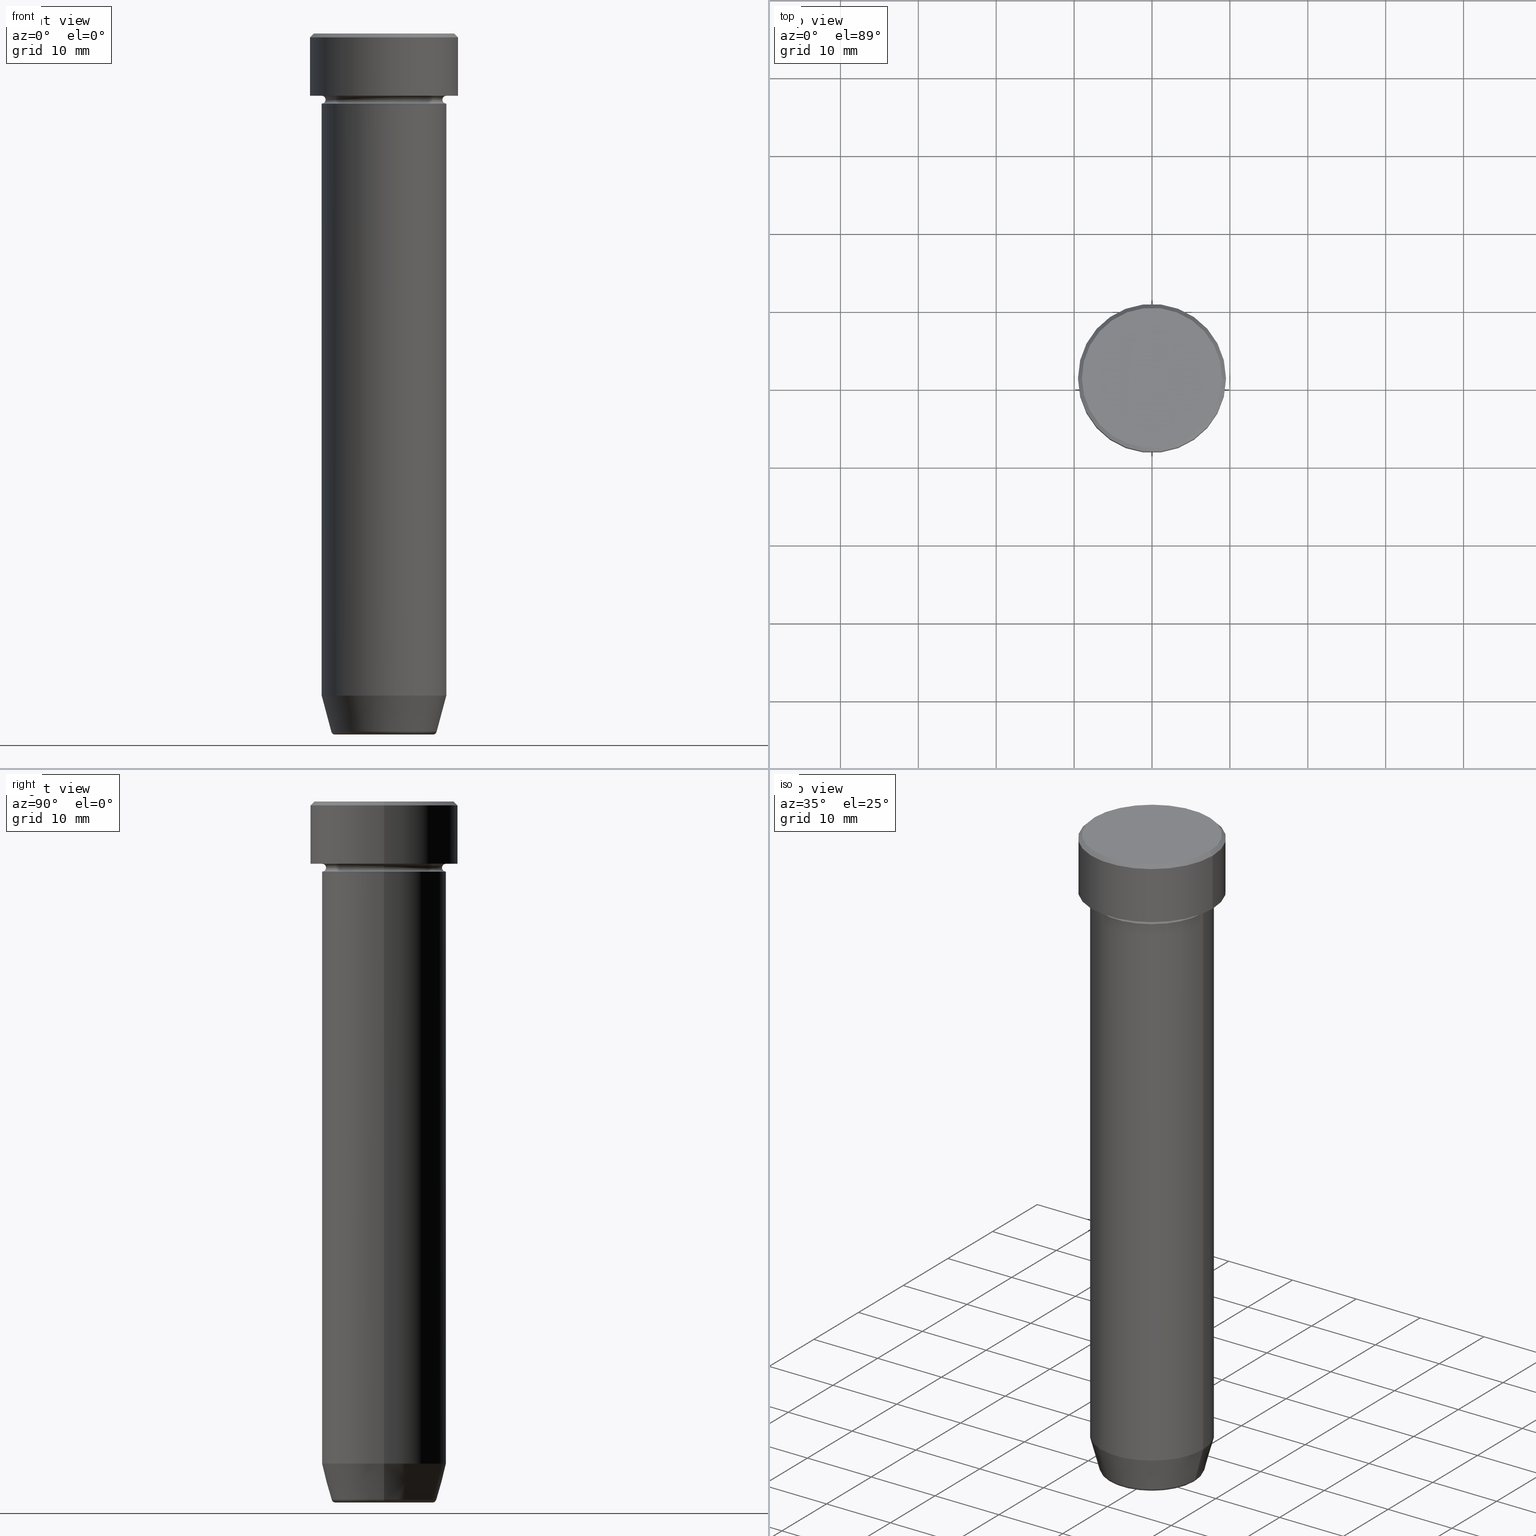
[diagram: canonical four-view strip — front | top / right | iso, engineering-drawing reading convention]
A machine part, canonical four-view strip (front | top / right | iso — engineering-drawing reading convention). The complete STEP part file that produces these views, byte-faithful:
ISO-10303-21;
HEADER;
FILE_DESCRIPTION (( 'STEP AP203' ),
    '1' );
FILE_NAME ('87c8.STEP',
    '2024-01-02T22:12:27',
    ( '' ),
    ( '' ),
    'SwSTEP 2.0',
    'SolidWorks 2019',
    '' );
FILE_SCHEMA (( 'CONFIG_CONTROL_DESIGN' ));
ENDSEC;

DATA;
#1 = VERTEX_POINT ( 'NONE', #568 ) ;
#2 = DIRECTION ( 'NONE',  ( 1.000000000000000000, 0.000000000000000000, 0.000000000000000000 ) ) ;
#3 = DIRECTION ( 'NONE',  ( 1.000000000000000000, 0.000000000000000000, 0.000000000000000000 ) ) ;
#4 = CIRCLE ( 'NONE', #336, 0.5000000000000004441 ) ;
#5 = ORIENTED_EDGE ( 'NONE', *, *, #583, .T. ) ;
#6 = SECURITY_CLASSIFICATION ( '', '', #526 ) ;
#7 = EDGE_CURVE ( 'NONE', #109, #513, #320, .T. ) ;
#8 = CARTESIAN_POINT ( 'NONE',  ( 0.000000000000000000, 0.000000000000000000, -8.500000000000000000 ) ) ;
#9 = VERTEX_POINT ( 'NONE', #426 ) ;
#10 = DIRECTION ( 'NONE',  ( -0.000000000000000000, -0.000000000000000000, 1.000000000000000000 ) ) ;
#11 = ORIENTED_EDGE ( 'NONE', *, *, #7, .F. ) ;
#12 = ORIENTED_EDGE ( 'NONE', *, *, #390, .F. ) ;
#13 = ADVANCED_FACE ( 'NONE', ( #67 ), #85, .F. ) ;
#14 = DIRECTION ( 'NONE',  ( 1.000000000000000000, 0.000000000000000000, 0.000000000000000000 ) ) ;
#15 = DIRECTION ( 'NONE',  ( -1.000000000000000000, 0.000000000000000000, 0.000000000000000000 ) ) ;
#16 = VERTEX_POINT ( 'NONE', #153 ) ;
#17 = DATE_TIME_ROLE ( 'classification_date' ) ;
#18 = ORIENTED_EDGE ( 'NONE', *, *, #38, .T. ) ;
#19 = VECTOR ( 'NONE', #10, 1000.000000000000000 ) ;
#20 = UNCERTAINTY_MEASURE_WITH_UNIT (LENGTH_MEASURE( 1.000000000000000082E-05 ), #577, 'distance_accuracy_value', 'NONE');
#21 = CARTESIAN_POINT ( 'NONE',  ( 0.000000000000000000, 0.000000000000000000, -89.62940952255125637 ) ) ;
#22 = ORIENTED_EDGE ( 'NONE', *, *, #494, .F. ) ;
#23 = EDGE_CURVE ( 'NONE', #469, #1, #63, .T. ) ;
#24 = CARTESIAN_POINT ( 'NONE',  ( 0.000000000000000000, 0.000000000000000000, 0.000000000000000000 ) ) ;
#25 = DIRECTION ( 'NONE',  ( -0.000000000000000000, -0.000000000000000000, 1.000000000000000000 ) ) ;
#26 = PERSON_AND_ORGANIZATION ( #177, #503 ) ;
#27 = VERTEX_POINT ( 'NONE', #196 ) ;
#28 = AXIS2_PLACEMENT_3D ( 'NONE', #253, #437, #59 ) ;
#29 = DIRECTION ( 'NONE',  ( -0.000000000000000000, -0.000000000000000000, 1.000000000000000000 ) ) ;
#30 = CALENDAR_DATE ( 2024, 2, 1 ) ;
#31 = CIRCLE ( 'NONE', #360, 8.000000000000000000 ) ;
#32 = DIRECTION ( 'NONE',  ( 1.000000000000000000, 0.000000000000000000, 0.000000000000000000 ) ) ;
#33 = DIRECTION ( 'NONE',  ( 1.000000000000000000, 0.000000000000000000, 0.000000000000000000 ) ) ;
#34 = TOROIDAL_SURFACE ( 'NONE', #51, 8.000000000000000000, 0.5000000000000000000 ) ;
#35 = FACE_OUTER_BOUND ( 'NONE', #424, .T. ) ;
#36 = AXIS2_PLACEMENT_3D ( 'NONE', #475, #66, #417 ) ;
#37 = PERSON_AND_ORGANIZATION_ROLE ( 'creator' ) ;
#38 = EDGE_CURVE ( 'NONE', #105, #395, #224, .T. ) ;
#39 = CARTESIAN_POINT ( 'NONE',  ( 9.500000000000000000, 0.000000000000000000, 0.000000000000000000 ) ) ;
#40 = CARTESIAN_POINT ( 'NONE',  ( 0.000000000000000000, 0.000000000000000000, -90.00000000000000000 ) ) ;
#41 = APPROVAL_STATUS ( 'not_yet_approved' ) ;
#42 = CARTESIAN_POINT ( 'NONE',  ( 0.000000000000000000, 0.000000000000000000, -89.50000000000000000 ) ) ;
#43 = CC_DESIGN_DATE_AND_TIME_ASSIGNMENT ( #251, #154, ( #330 ) ) ;
#44 = ADVANCED_FACE ( 'NONE', ( #98 ), #34, .F. ) ;
#45 = LOCAL_TIME ( 23, 12, 27.00000000000000000, #442 ) ;
#46 = CARTESIAN_POINT ( 'NONE',  ( -8.000000000000000000, 9.797174393178825657E-16, 0.000000000000000000 ) ) ;
#47 = MANIFOLD_SOLID_BREP ( 'Zkosen�1', #585 ) ;
#48 = ORIENTED_EDGE ( 'NONE', *, *, #305, .T. ) ;
#49 = CARTESIAN_POINT ( 'NONE',  ( -9.500000000000000000, 1.163414459189985485E-15, -0.4999999999999968914 ) ) ;
#50 = ORIENTED_EDGE ( 'NONE', *, *, #23, .T. ) ;
#51 = AXIS2_PLACEMENT_3D ( 'NONE', #510, #100, #281 ) ;
#52 = EDGE_LOOP ( 'NONE', ( #113, #343 ) ) ;
#53 = DIRECTION ( 'NONE',  ( -0.000000000000000000, -0.000000000000000000, 1.000000000000000000 ) ) ;
#54 = ORIENTED_EDGE ( 'NONE', *, *, #560, .F. ) ;
#55 = CIRCLE ( 'NONE', #210, 8.000000000000000000 ) ;
#56 = TOROIDAL_SURFACE ( 'NONE', #414, 6.276590543854900339, 0.5000000000000000000 ) ;
#57 = CC_DESIGN_APPROVAL ( #419, ( #330 ) ) ;
#58 = CARTESIAN_POINT ( 'NONE',  ( 0.000000000000000000, 0.000000000000000000, 0.000000000000000000 ) ) ;
#59 = DIRECTION ( 'NONE',  ( 1.000000000000000000, 0.000000000000000000, 0.000000000000000000 ) ) ;
#60 = ORIENTED_EDGE ( 'NONE', *, *, #462, .F. ) ;
#61 = DIRECTION ( 'NONE',  ( 1.000000000000000000, 0.000000000000000000, 0.000000000000000000 ) ) ;
#62 = ORIENTED_EDGE ( 'NONE', *, *, #38, .F. ) ;
#63 = CIRCLE ( 'NONE', #28, 9.000000000000001776 ) ;
#64 = APPROVAL_DATE_TIME ( #157, #223 ) ;
#65 = ORIENTED_EDGE ( 'NONE', *, *, #231, .T. ) ;
#66 = DIRECTION ( 'NONE',  ( 0.000000000000000000, -0.000000000000000000, 1.000000000000000000 ) ) ;
#67 = FACE_OUTER_BOUND ( 'NONE', #252, .T. ) ;
#68 = ADVANCED_FACE ( 'NONE', ( #375 ), #548, .T. ) ;
#69 = EDGE_LOOP ( 'NONE', ( #207, #286, #247, #294 ) ) ;
#70 = AXIS2_PLACEMENT_3D ( 'NONE', #152, #243, #15 ) ;
#71 = VECTOR ( 'NONE', #402, 1000.000000000000000 ) ;
#72 = ORIENTED_EDGE ( 'NONE', *, *, #78, .T. ) ;
#73 = APPROVAL ( #519, 'NEUR�EN�' ) ;
#74 = CARTESIAN_POINT ( 'NONE',  ( 8.000000000000000000, 0.000000000000000000, 0.000000000000000000 ) ) ;
#75 = DIRECTION ( 'NONE',  ( 0.000000000000000000, -1.000000000000000000, 0.000000000000000000 ) ) ;
#76 = APPROVAL_ROLE ( '' ) ;
#77 = CLOSED_SHELL ( 'NONE', ( #246, #536, #175, #506, #545, #321, #472, #264 ) ) ;
#78 = EDGE_CURVE ( 'NONE', #348, #299, #83, .T. ) ;
#79 = CIRCLE ( 'NONE', #133, 8.000000000000000000 ) ;
#80 = CARTESIAN_POINT ( 'NONE',  ( 0.000000000000000000, 0.000000000000000000, 0.000000000000000000 ) ) ;
#81 = PERSON_AND_ORGANIZATION_ROLE ( 'design_owner' ) ;
#82 = PLANE ( 'NONE',  #543 ) ;
#83 = CIRCLE ( 'NONE', #127, 7.500000000000000000 ) ;
#84 = APPROVAL_ROLE ( '' ) ;
#85 = TOROIDAL_SURFACE ( 'NONE', #280, 8.000000000000000000, 0.5000000000000000000 ) ;
#86 = EDGE_CURVE ( 'NONE', #373, #27, #440, .T. ) ;
#87 = PERSON_AND_ORGANIZATION ( #177, #503 ) ;
#88 = DIRECTION ( 'NONE',  ( -1.000000000000000000, 1.224646799147353454E-16, 0.000000000000000000 ) ) ;
#89 = TOROIDAL_SURFACE ( 'NONE', #436, 6.276590543854900339, 0.5000000000000000000 ) ;
#90 = CARTESIAN_POINT ( 'NONE',  ( -8.000000000000000000, 9.797174393178825657E-16, -8.500000000000000000 ) ) ;
#91 = EDGE_CURVE ( 'NONE', #150, #245, #586, .T. ) ;
#92 = CARTESIAN_POINT ( 'NONE',  ( -7.500000000000000000, 9.491012693391985815E-16, -8.500000000000000000 ) ) ;
#93 = AXIS2_PLACEMENT_3D ( 'NONE', #566, #512, #3 ) ;
#94 = CIRCLE ( 'NONE', #285, 8.000000000000000000 ) ;
#95 = LOCAL_TIME ( 23, 12, 27.00000000000000000, #477 ) ;
#96 = DIRECTION ( 'NONE',  ( -0.000000000000000000, -0.000000000000000000, 1.000000000000000000 ) ) ;
#97 = CARTESIAN_POINT ( 'NONE',  ( 8.000000000000000000, 0.000000000000000000, 0.000000000000000000 ) ) ;
#98 = FACE_OUTER_BOUND ( 'NONE', #554, .T. ) ;
#99 = EDGE_LOOP ( 'NONE', ( #563, #155, #379, #22 ) ) ;
#100 = DIRECTION ( 'NONE',  ( 0.000000000000000000, 0.000000000000000000, -1.000000000000000000 ) ) ;
#101 = EDGE_LOOP ( 'NONE', ( #183, #576, #158, #470 ) ) ;
#102 = ADVANCED_FACE ( 'NONE', ( #35 ), #564, .T. ) ;
#103 = FACE_OUTER_BOUND ( 'NONE', #99, .T. ) ;
#104 = ORIENTED_EDGE ( 'NONE', *, *, #560, .T. ) ;
#105 = VERTEX_POINT ( 'NONE', #580 ) ;
#106 = CC_DESIGN_APPROVAL ( #223, ( #567 ) ) ;
#107 = LINE ( 'NONE', #425, #528 ) ;
#108 = ORIENTED_EDGE ( 'NONE', *, *, #126, .F. ) ;
#109 = VERTEX_POINT ( 'NONE', #346 ) ;
#110 = DIRECTION ( 'NONE',  ( 1.000000000000000000, 0.000000000000000000, 0.000000000000000000 ) ) ;
#111 = DIRECTION ( 'NONE',  ( -1.000000000000000000, 0.000000000000000000, 0.000000000000000000 ) ) ;
#112 = CALENDAR_DATE ( 2024, 2, 1 ) ;
#113 = ORIENTED_EDGE ( 'NONE', *, *, #433, .T. ) ;
#114 = CARTESIAN_POINT ( 'NONE',  ( 8.000000000000000000, 9.797174393178825657E-16, -8.500000000000000000 ) ) ;
#115 = ORIENTED_EDGE ( 'NONE', *, *, #260, .F. ) ;
#116 = VECTOR ( 'NONE', #588, 1000.000000000000000 ) ;
#117 = CARTESIAN_POINT ( 'NONE',  ( -8.000000000000000000, 0.000000000000000000, -8.000000000000000000 ) ) ;
#118 = COORDINATED_UNIVERSAL_TIME_OFFSET ( 1, 0, .AHEAD. ) ;
#119 = CC_DESIGN_PERSON_AND_ORGANIZATION_ASSIGNMENT ( #352, #347, ( #567 ) ) ;
#120 = DIRECTION ( 'NONE',  ( -0.000000000000000000, -0.000000000000000000, 1.000000000000000000 ) ) ;
#121 = CALENDAR_DATE ( 2024, 2, 1 ) ;
#122 = DIRECTION ( 'NONE',  ( 1.000000000000000000, 0.000000000000000000, 0.000000000000000000 ) ) ;
#123 = AXIS2_PLACEMENT_3D ( 'NONE', #266, #270, #454 ) ;
#124 = DIRECTION ( 'NONE',  ( 0.000000000000000000, 0.000000000000000000, -1.000000000000000000 ) ) ;
#125 = LINE ( 'NONE', #39, #450 ) ;
#126 = EDGE_CURVE ( 'NONE', #513, #109, #492, .T. ) ;
#127 = AXIS2_PLACEMENT_3D ( 'NONE', #8, #192, #122 ) ;
#128 = MECHANICAL_CONTEXT ( 'NONE', #401, 'mechanical' ) ;
#129 = DIRECTION ( 'NONE',  ( -0.000000000000000000, -0.000000000000000000, 1.000000000000000000 ) ) ;
#130 = DIRECTION ( 'NONE',  ( 1.000000000000000000, 0.000000000000000000, 0.000000000000000000 ) ) ;
#131 = AXIS2_PLACEMENT_3D ( 'NONE', #400, #25, #33 ) ;
#132 = CARTESIAN_POINT ( 'NONE',  ( 8.000000000000000000, 9.797174393178825657E-16, -8.000000000000000000 ) ) ;
#133 = AXIS2_PLACEMENT_3D ( 'NONE', #315, #410, #496 ) ;
#134 = EDGE_CURVE ( 'NONE', #323, #198, #55, .T. ) ;
#135 = DIRECTION ( 'NONE',  ( 0.000000000000000000, 0.000000000000000000, -1.000000000000000000 ) ) ;
#136 = DIRECTION ( 'NONE',  ( -0.000000000000000000, -0.000000000000000000, 1.000000000000000000 ) ) ;
#137 = ORIENTED_EDGE ( 'NONE', *, *, #151, .T. ) ;
#138 = CARTESIAN_POINT ( 'NONE',  ( 0.000000000000000000, 0.000000000000000000, -22.00000000000000000 ) ) ;
#139 = CIRCLE ( 'NONE', #538, 8.000000000000000000 ) ;
#140 = ORIENTED_EDGE ( 'NONE', *, *, #371, .F. ) ;
#141 = DIRECTION ( 'NONE',  ( -0.000000000000000000, -0.000000000000000000, 1.000000000000000000 ) ) ;
#142 = ADVANCED_FACE ( 'NONE', ( #487 ), #82, .T. ) ;
#143 = CARTESIAN_POINT ( 'NONE',  ( 0.000000000000000000, 0.000000000000000000, -8.500000000000000000 ) ) ;
#144 = EDGE_LOOP ( 'NONE', ( #502, #235 ) ) ;
#145 = CARTESIAN_POINT ( 'NONE',  ( -8.000000000000000000, 0.000000000000000000, -8.500000000000000000 ) ) ;
#146 = EDGE_LOOP ( 'NONE', ( #562, #559, #60, #508 ) ) ;
#147 = DIRECTION ( 'NONE',  ( -0.7071067811865489050, 0.000000000000000000, -0.7071067811865462405 ) ) ;
#148 = EDGE_LOOP ( 'NONE', ( #205, #552 ) ) ;
#149 = CIRCLE ( 'NONE', #445, 7.500000000000000000 ) ;
#150 = VERTEX_POINT ( 'NONE', #396 ) ;
#151 = EDGE_CURVE ( 'NONE', #469, #105, #480, .T. ) ;
#152 = CARTESIAN_POINT ( 'NONE',  ( 0.000000000000000000, 0.000000000000000000, -8.000000000000000000 ) ) ;
#153 = CARTESIAN_POINT ( 'NONE',  ( -9.500000000000000000, 1.163414459189985485E-15, -8.000000000000000000 ) ) ;
#154 = DATE_TIME_ROLE ( 'creation_date' ) ;
#155 = ORIENTED_EDGE ( 'NONE', *, *, #365, .T. ) ;
#156 = CARTESIAN_POINT ( 'NONE',  ( 0.000000000000000000, 0.000000000000000000, 0.000000000000000000 ) ) ;
#157 = DATE_AND_TIME ( #121, #95 ) ;
#158 = ORIENTED_EDGE ( 'NONE', *, *, #233, .F. ) ;
#159 = DIRECTION ( 'NONE',  ( 1.224646799147353207E-16, 1.000000000000000000, 0.000000000000000000 ) ) ;
#160 = CARTESIAN_POINT ( 'NONE',  ( 0.000000000000000000, 8.000000000000000000, -22.00000000000000000 ) ) ;
#161 = EDGE_LOOP ( 'NONE', ( #287, #382, #391, #108 ) ) ;
#162 =( NAMED_UNIT ( * ) SI_UNIT ( $, .STERADIAN. ) SOLID_ANGLE_UNIT ( ) );
#163 = AXIS2_PLACEMENT_3D ( 'NONE', #592, #546, #135 ) ;
#164 = APPROVAL_PERSON_ORGANIZATION ( #484, #73, #76 ) ;
#165 = CARTESIAN_POINT ( 'NONE',  ( 6.660254037844381081, 0.000000000000000000, -90.00000000000000000 ) ) ;
#166 = APPROVAL_STATUS ( 'not_yet_approved' ) ;
#167 = DIRECTION ( 'NONE',  ( 0.000000000000000000, 0.000000000000000000, -1.000000000000000000 ) ) ;
#168 = CARTESIAN_POINT ( 'NONE',  ( 0.000000000000000000, 0.000000000000000000, -8.000000000000000000 ) ) ;
#169 = AXIS2_PLACEMENT_3D ( 'NONE', #448, #447, #300 ) ;
#170 = CYLINDRICAL_SURFACE ( 'NONE', #590, 8.000000000000000000 ) ;
#171 = EDGE_CURVE ( 'NONE', #109, #193, #262, .T. ) ;
#172 = CARTESIAN_POINT ( 'NONE',  ( 0.000000000000000000, 0.000000000000000000, -9.000000000000001776 ) ) ;
#173 = FACE_OUTER_BOUND ( 'NONE', #161, .T. ) ;
#174 = DIRECTION ( 'NONE',  ( -0.000000000000000000, -0.000000000000000000, 1.000000000000000000 ) ) ;
#175 = ADVANCED_FACE ( 'NONE', ( #394 ), #170, .T. ) ;
#176 = FACE_OUTER_BOUND ( 'NONE', #259, .T. ) ;
#177 = PERSON ( 'NEUR�EN�', 'NEUR�EN�', 'NEUR�EN�', ('NEUR�EN�'), ('NEUR�EN�'), ('NEUR�EN�') ) ;
#178 = AXIS2_PLACEMENT_3D ( 'NONE', #341, #377, #61 ) ;
#179 = AXIS2_PLACEMENT_3D ( 'NONE', #226, #129, #541 ) ;
#180 = CYLINDRICAL_SURFACE ( 'NONE', #309, 8.000000000000000000 ) ;
#181 = CC_DESIGN_PERSON_AND_ORGANIZATION_ASSIGNMENT ( #497, #81, ( #357 ) ) ;
#182 = FACE_OUTER_BOUND ( 'NONE', #418, .T. ) ;
#183 = ORIENTED_EDGE ( 'NONE', *, *, #7, .T. ) ;
#184 = CARTESIAN_POINT ( 'NONE',  ( 0.000000000000000000, 0.000000000000000000, 0.000000000000000000 ) ) ;
#185 = ADVANCED_FACE ( 'NONE', ( #574 ), #582, .T. ) ;
#186 = CYLINDRICAL_SURFACE ( 'NONE', #93, 8.000000000000000000 ) ;
#187 = AXIS2_PLACEMENT_3D ( 'NONE', #505, #333, #234 ) ;
#188 = EDGE_CURVE ( 'NONE', #348, #323, #4, .T. ) ;
#189 = AXIS2_PLACEMENT_3D ( 'NONE', #383, #457, #467 ) ;
#190 = EDGE_LOOP ( 'NONE', ( #293, #290 ) ) ;
#191 = CARTESIAN_POINT ( 'NONE',  ( -6.276590543854900339, 7.982336011935116411E-16, -90.00000000000000000 ) ) ;
#192 = DIRECTION ( 'NONE',  ( -0.000000000000000000, -0.000000000000000000, 1.000000000000000000 ) ) ;
#193 = VERTEX_POINT ( 'NONE', #439 ) ;
#194 = CARTESIAN_POINT ( 'NONE',  ( 0.000000000000000000, 0.000000000000000000, -22.00000000000000000 ) ) ;
#195 = ADVANCED_BREP_SHAPE_REPRESENTATION ( '87c8', ( #47, #257, #203 ), #298 ) ;
#196 = CARTESIAN_POINT ( 'NONE',  ( 6.276590543854900339, 0.000000000000000000, -90.00000000000000000 ) ) ;
#197 = EDGE_CURVE ( 'NONE', #16, #9, #385, .T. ) ;
#198 = VERTEX_POINT ( 'NONE', #117 ) ;
#199 = FACE_OUTER_BOUND ( 'NONE', #557, .T. ) ;
#200 = ORIENTED_EDGE ( 'NONE', *, *, #494, .T. ) ;
#201 = AXIS2_PLACEMENT_3D ( 'NONE', #444, #350, #530 ) ;
#202 = EDGE_LOOP ( 'NONE', ( #236, #5, #11, #571 ) ) ;
#203 = AXIS2_PLACEMENT_3D ( 'NONE', #24, #572, #349 ) ;
#204 = ORIENTED_EDGE ( 'NONE', *, *, #550, .F. ) ;
#205 = ORIENTED_EDGE ( 'NONE', *, *, #462, .T. ) ;
#206 = CARTESIAN_POINT ( 'NONE',  ( 0.000000000000000000, 0.000000000000000000, -89.62940952255125637 ) ) ;
#207 = ORIENTED_EDGE ( 'NONE', *, *, #296, .F. ) ;
#208 = DIRECTION ( 'NONE',  ( 1.000000000000000000, 0.000000000000000000, 0.000000000000000000 ) ) ;
#209 = DATE_AND_TIME ( #30, #45 ) ;
#210 = AXIS2_PLACEMENT_3D ( 'NONE', #168, #29, #525 ) ;
#211 = VECTOR ( 'NONE', #372, 1000.000000000000000 ) ;
#212 = VECTOR ( 'NONE', #230, 1000.000000000000000 ) ;
#213 = APPLICATION_CONTEXT ( 'configuration controlled 3d designs of mechanical parts and assemblies' ) ;
#214 = DIRECTION ( 'NONE',  ( -0.000000000000000000, -0.000000000000000000, 1.000000000000000000 ) ) ;
#215 = EDGE_CURVE ( 'NONE', #27, #109, #407, .T. ) ;
#216 = EDGE_CURVE ( 'NONE', #299, #348, #149, .T. ) ;
#217 = DIRECTION ( 'NONE',  ( -1.000000000000000000, 0.000000000000000000, 0.000000000000000000 ) ) ;
#218 = PERSON_AND_ORGANIZATION ( #177, #503 ) ;
#219 = CIRCLE ( 'NONE', #493, 0.5000000000000004441 ) ;
#220 = CARTESIAN_POINT ( 'NONE',  ( 0.000000000000000000, 0.000000000000000000, -89.50000000000000000 ) ) ;
#221 = COORDINATED_UNIVERSAL_TIME_OFFSET ( 1, 0, .AHEAD. ) ;
#222 = FACE_OUTER_BOUND ( 'NONE', #148, .T. ) ;
#223 = APPROVAL ( #166, 'NEUR�EN�' ) ;
#224 = CIRCLE ( 'NONE', #404, 9.500000000000000000 ) ;
#225 = DIRECTION ( 'NONE',  ( 1.224646799147353207E-16, 1.000000000000000000, 0.000000000000000000 ) ) ;
#226 = CARTESIAN_POINT ( 'NONE',  ( 0.000000000000000000, 0.000000000000000000, 0.000000000000000000 ) ) ;
#227 = DIRECTION ( 'NONE',  ( 1.000000000000000000, 0.000000000000000000, 0.000000000000000000 ) ) ;
#228 = VECTOR ( 'NONE', #359, 1000.000000000000114 ) ;
#229 = CONICAL_SURFACE ( 'NONE', #415, 6.660254037844381081, 0.2617993877991502405 ) ;
#230 = DIRECTION ( 'NONE',  ( -0.000000000000000000, -0.000000000000000000, 1.000000000000000000 ) ) ;
#231 = EDGE_CURVE ( 'NONE', #420, #193, #596, .T. ) ;
#232 = ORIENTED_EDGE ( 'NONE', *, *, #305, .F. ) ;
#233 = EDGE_CURVE ( 'NONE', #193, #420, #79, .T. ) ;
#234 = DIRECTION ( 'NONE',  ( 1.000000000000000000, 0.000000000000000000, 0.000000000000000000 ) ) ;
#235 = ORIENTED_EDGE ( 'NONE', *, *, #134, .T. ) ;
#236 = ORIENTED_EDGE ( 'NONE', *, *, #86, .F. ) ;
#237 = PRODUCT_RELATED_PRODUCT_CATEGORY ( 'detail', '', ( #357 ) ) ;
#238 = AXIS2_PLACEMENT_3D ( 'NONE', #206, #214, #356 ) ;
#239 = CIRCLE ( 'NONE', #163, 0.5000000000000004441 ) ;
#240 = DIRECTION ( 'NONE',  ( 0.000000000000000000, 0.000000000000000000, -1.000000000000000000 ) ) ;
#241 = AXIS2_PLACEMENT_3D ( 'NONE', #429, #332, #14 ) ;
#242 = ORIENTED_EDGE ( 'NONE', *, *, #355, .F. ) ;
#243 = DIRECTION ( 'NONE',  ( -0.000000000000000000, -0.000000000000000000, 1.000000000000000000 ) ) ;
#244 = EDGE_CURVE ( 'NONE', #348, #150, #239, .T. ) ;
#245 = VERTEX_POINT ( 'NONE', #540 ) ;
#246 = ADVANCED_FACE ( 'NONE', ( #273 ), #56, .T. ) ;
#247 = ORIENTED_EDGE ( 'NONE', *, *, #171, .T. ) ;
#248 = CARTESIAN_POINT ( 'NONE',  ( 0.000000000000000000, 0.000000000000000000, -90.00000000000000000 ) ) ;
#249 = DIRECTION ( 'NONE',  ( 1.000000000000000000, 0.000000000000000000, 0.000000000000000000 ) ) ;
#250 = EDGE_LOOP ( 'NONE', ( #232, #388, #461, #570 ) ) ;
#251 = DATE_AND_TIME ( #112, #591 ) ;
#252 = EDGE_LOOP ( 'NONE', ( #275, #72, #434, #518 ) ) ;
#253 = CARTESIAN_POINT ( 'NONE',  ( 0.000000000000000000, 0.000000000000000000, 0.000000000000000000 ) ) ;
#254 = AXIS2_PLACEMENT_3D ( 'NONE', #160, #124, #265 ) ;
#255 = CIRCLE ( 'NONE', #443, 0.5000000000000004441 ) ;
#256 = ORIENTED_EDGE ( 'NONE', *, *, #216, .T. ) ;
#257 = MANIFOLD_SOLID_BREP ( 'Zaoblit4', #77 ) ;
#258 = DIRECTION ( 'NONE',  ( -1.000000000000000000, -1.224646799147353454E-16, 0.000000000000000000 ) ) ;
#259 = EDGE_LOOP ( 'NONE', ( #329, #104, #520, #140 ) ) ;
#260 = EDGE_CURVE ( 'NONE', #9, #16, #468, .T. ) ;
#261 = DIRECTION ( 'NONE',  ( 0.000000000000000000, 0.000000000000000000, -1.000000000000000000 ) ) ;
#262 = LINE ( 'NONE', #165, #228 ) ;
#263 = PRODUCT_DEFINITION_SHAPE ( 'NONE', 'NONE',  #330 ) ;
#264 = ADVANCED_FACE ( 'NONE', ( #173 ), #89, .T. ) ;
#265 = DIRECTION ( 'NONE',  ( -1.000000000000000000, 0.000000000000000000, -0.000000000000000000 ) ) ;
#266 = CARTESIAN_POINT ( 'NONE',  ( 0.000000000000000000, 0.000000000000000000, -8.500000000000000000 ) ) ;
#267 = AXIS2_PLACEMENT_3D ( 'NONE', #409, #269, #314 ) ;
#268 = FACE_OUTER_BOUND ( 'NONE', #69, .T. ) ;
#269 = DIRECTION ( 'NONE',  ( 0.000000000000000000, 0.000000000000000000, -1.000000000000000000 ) ) ;
#270 = DIRECTION ( 'NONE',  ( -0.000000000000000000, -0.000000000000000000, 1.000000000000000000 ) ) ;
#271 = DIRECTION ( 'NONE',  ( -0.2588190451025214611, 3.169619151431774186E-17, 0.9659258262890679791 ) ) ;
#272 = FACE_OUTER_BOUND ( 'NONE', #101, .T. ) ;
#273 = FACE_OUTER_BOUND ( 'NONE', #202, .T. ) ;
#274 = LOCAL_TIME ( 23, 12, 27.00000000000000000, #455 ) ;
#275 = ORIENTED_EDGE ( 'NONE', *, *, #188, .F. ) ;
#276 = FACE_OUTER_BOUND ( 'NONE', #474, .T. ) ;
#277 = ORIENTED_EDGE ( 'NONE', *, *, #371, .T. ) ;
#278 = CC_DESIGN_PERSON_AND_ORGANIZATION_ASSIGNMENT ( #303, #531, ( #6 ) ) ;
#279 = VERTEX_POINT ( 'NONE', #542 ) ;
#280 = AXIS2_PLACEMENT_3D ( 'NONE', #143, #523, #111 ) ;
#281 = DIRECTION ( 'NONE',  ( -1.000000000000000000, 0.000000000000000000, 0.000000000000000000 ) ) ;
#282 = ORIENTED_EDGE ( 'NONE', *, *, #453, .T. ) ;
#283 = ADVANCED_FACE ( 'NONE', ( #176 ), #180, .T. ) ;
#284 = LINE ( 'NONE', #46, #212 ) ;
#285 = AXIS2_PLACEMENT_3D ( 'NONE', #138, #325, #110 ) ;
#286 = ORIENTED_EDGE ( 'NONE', *, *, #126, .T. ) ;
#287 = ORIENTED_EDGE ( 'NONE', *, *, #583, .F. ) ;
#288 = DIRECTION ( 'NONE',  ( -0.000000000000000000, -0.000000000000000000, 1.000000000000000000 ) ) ;
#289 = CARTESIAN_POINT ( 'NONE',  ( 9.000000000000001776, 1.132798289211301698E-15, 0.000000000000000000 ) ) ;
#290 = ORIENTED_EDGE ( 'NONE', *, *, #413, .F. ) ;
#291 = ORIENTED_EDGE ( 'NONE', *, *, #389, .F. ) ;
#292 = DIRECTION ( 'NONE',  ( -0.000000000000000000, -0.000000000000000000, 1.000000000000000000 ) ) ;
#293 = ORIENTED_EDGE ( 'NONE', *, *, #412, .F. ) ;
#294 = ORIENTED_EDGE ( 'NONE', *, *, #231, .F. ) ;
#295 = DIRECTION ( 'NONE',  ( -1.224646799147353207E-16, 1.000000000000000000, 0.000000000000000000 ) ) ;
#296 = EDGE_CURVE ( 'NONE', #513, #420, #313, .T. ) ;
#297 = AXIS2_PLACEMENT_3D ( 'NONE', #335, #516, #249 ) ;
#298 =( GEOMETRIC_REPRESENTATION_CONTEXT ( 3 ) GLOBAL_UNCERTAINTY_ASSIGNED_CONTEXT ( ( #20 ) ) GLOBAL_UNIT_ASSIGNED_CONTEXT ( ( #577, #584, #162 ) ) REPRESENTATION_CONTEXT ( 'NONE', 'WORKASPACE' ) );
#299 = VERTEX_POINT ( 'NONE', #92 ) ;
#300 = DIRECTION ( 'NONE',  ( 1.000000000000000000, 0.000000000000000000, 0.000000000000000000 ) ) ;
#301 = CALENDAR_DATE ( 2024, 2, 1 ) ;
#302 = DIRECTION ( 'NONE',  ( -0.000000000000000000, -0.000000000000000000, 1.000000000000000000 ) ) ;
#303 = PERSON_AND_ORGANIZATION ( #177, #503 ) ;
#304 = DIRECTION ( 'NONE',  ( -1.000000000000000000, 1.224646799147351482E-16, 0.000000000000000000 ) ) ;
#305 = EDGE_CURVE ( 'NONE', #299, #245, #219, .T. ) ;
#306 = CARTESIAN_POINT ( 'NONE',  ( 0.000000000000000000, 0.000000000000000000, 0.000000000000000000 ) ) ;
#307 = EDGE_CURVE ( 'NONE', #1, #469, #565, .T. ) ;
#308 = AXIS2_PLACEMENT_3D ( 'NONE', #306, #403, #217 ) ;
#309 = AXIS2_PLACEMENT_3D ( 'NONE', #366, #319, #130 ) ;
#310 = LOCAL_TIME ( 23, 12, 27.00000000000000000, #118 ) ;
#311 = DIRECTION ( 'NONE',  ( 0.000000000000000000, -0.000000000000000000, 1.000000000000000000 ) ) ;
#312 = APPLICATION_PROTOCOL_DEFINITION ( 'international standard', 'config_control_design', 1994, #213 ) ;
#313 = LINE ( 'NONE', #491, #578 ) ;
#314 = DIRECTION ( 'NONE',  ( -1.000000000000000000, 0.000000000000000000, -0.000000000000000000 ) ) ;
#315 = CARTESIAN_POINT ( 'NONE',  ( 0.000000000000000000, 0.000000000000000000, -84.99999999999998579 ) ) ;
#316 = CIRCLE ( 'NONE', #241, 9.500000000000000000 ) ;
#317 = FACE_OUTER_BOUND ( 'NONE', #250, .T. ) ;
#318 = PLANE ( 'NONE',  #267 ) ;
#319 = DIRECTION ( 'NONE',  ( -0.000000000000000000, -0.000000000000000000, 1.000000000000000000 ) ) ;
#320 = CIRCLE ( 'NONE', #345, 6.759553456999436882 ) ;
#321 = ADVANCED_FACE ( 'NONE', ( #268 ), #421, .T. ) ;
#322 = CARTESIAN_POINT ( 'NONE',  ( 0.000000000000000000, 0.000000000000000000, -8.000000000000000000 ) ) ;
#323 = VERTEX_POINT ( 'NONE', #132 ) ;
#324 = AXIS2_PLACEMENT_3D ( 'NONE', #40, #174, #370 ) ;
#325 = DIRECTION ( 'NONE',  ( -0.000000000000000000, -0.000000000000000000, 1.000000000000000000 ) ) ;
#326 = CARTESIAN_POINT ( 'NONE',  ( 0.000000000000000000, 0.000000000000000000, -0.4999999999999968914 ) ) ;
#327 = ORIENTED_EDGE ( 'NONE', *, *, #453, .F. ) ;
#328 = DIRECTION ( 'NONE',  ( 1.000000000000000000, 0.000000000000000000, 0.000000000000000000 ) ) ;
#329 = ORIENTED_EDGE ( 'NONE', *, *, #412, .T. ) ;
#330 = PRODUCT_DEFINITION ( 'NEZN�M�', '', #567, #431 ) ;
#331 = ORIENTED_EDGE ( 'NONE', *, *, #413, .T. ) ;
#332 = DIRECTION ( 'NONE',  ( 0.000000000000000000, 0.000000000000000000, -1.000000000000000000 ) ) ;
#333 = DIRECTION ( 'NONE',  ( 0.000000000000000000, 0.000000000000000000, -1.000000000000000000 ) ) ;
#334 = VERTEX_POINT ( 'NONE', #589 ) ;
#335 = CARTESIAN_POINT ( 'NONE',  ( 0.000000000000000000, 0.000000000000000000, -22.00000000000000000 ) ) ;
#336 = AXIS2_PLACEMENT_3D ( 'NONE', #114, #295, #258 ) ;
#337 = EDGE_LOOP ( 'NONE', ( #511, #428, #282, #62 ) ) ;
#338 = AXIS2_PLACEMENT_3D ( 'NONE', #446, #159, #304 ) ;
#339 = DATE_AND_TIME ( #301, #310 ) ;
#340 = ORIENTED_EDGE ( 'NONE', *, *, #216, .F. ) ;
#341 = CARTESIAN_POINT ( 'NONE',  ( 0.000000000000000000, 0.000000000000000000, -22.00000000000000000 ) ) ;
#342 = DIRECTION ( 'NONE',  ( -0.000000000000000000, -0.000000000000000000, 1.000000000000000000 ) ) ;
#343 = ORIENTED_EDGE ( 'NONE', *, *, #86, .T. ) ;
#344 = ADVANCED_FACE ( 'NONE', ( #317 ), #397, .F. ) ;
#345 = AXIS2_PLACEMENT_3D ( 'NONE', #21, #342, #476 ) ;
#346 = CARTESIAN_POINT ( 'NONE',  ( 6.759553456999437770, 0.000000000000000000, -89.62940952255125637 ) ) ;
#347 = PERSON_AND_ORGANIZATION_ROLE ( 'design_supplier' ) ;
#348 = VERTEX_POINT ( 'NONE', #595 ) ;
#349 = DIRECTION ( 'NONE',  ( 1.000000000000000000, 0.000000000000000000, 0.000000000000000000 ) ) ;
#350 = DIRECTION ( 'NONE',  ( -0.000000000000000000, -0.000000000000000000, 1.000000000000000000 ) ) ;
#351 = AXIS2_PLACEMENT_3D ( 'NONE', #533, #302, #485 ) ;
#352 = PERSON_AND_ORGANIZATION ( #177, #503 ) ;
#353 = ORIENTED_EDGE ( 'NONE', *, *, #597, .T. ) ;
#354 = CARTESIAN_POINT ( 'NONE',  ( 0.000000000000000000, 0.000000000000000000, -8.500000000000000000 ) ) ;
#355 = EDGE_CURVE ( 'NONE', #245, #150, #139, .T. ) ;
#356 = DIRECTION ( 'NONE',  ( -1.000000000000000000, 0.000000000000000000, 0.000000000000000000 ) ) ;
#357 = PRODUCT ( '87c8', '87c8', '', ( #128 ) ) ;
#358 = CALENDAR_DATE ( 2024, 2, 1 ) ;
#359 = DIRECTION ( 'NONE',  ( 0.2588190451025214611, 0.000000000000000000, 0.9659258262890679791 ) ) ;
#360 = AXIS2_PLACEMENT_3D ( 'NONE', #194, #292, #556 ) ;
#361 = CIRCLE ( 'NONE', #178, 8.000000000000000000 ) ;
#362 = APPROVAL_PERSON_ORGANIZATION ( #26, #223, #575 ) ;
#363 = CC_DESIGN_DATE_AND_TIME_ASSIGNMENT ( #339, #17, ( #6 ) ) ;
#364 = CYLINDRICAL_SURFACE ( 'NONE', #179, 9.500000000000000000 ) ;
#365 = EDGE_CURVE ( 'NONE', #16, #395, #460, .T. ) ;
#366 = CARTESIAN_POINT ( 'NONE',  ( 0.000000000000000000, 0.000000000000000000, 0.000000000000000000 ) ) ;
#367 = DIRECTION ( 'NONE',  ( -0.000000000000000000, -0.000000000000000000, 1.000000000000000000 ) ) ;
#368 = CIRCLE ( 'NONE', #187, 6.276590543854900339 ) ;
#369 = APPROVAL_PERSON_ORGANIZATION ( #218, #419, #84 ) ;
#370 = DIRECTION ( 'NONE',  ( 1.000000000000000000, 0.000000000000000000, 0.000000000000000000 ) ) ;
#371 = EDGE_CURVE ( 'NONE', #527, #150, #380, .T. ) ;
#372 = DIRECTION ( 'NONE',  ( -0.000000000000000000, -0.000000000000000000, 1.000000000000000000 ) ) ;
#373 = VERTEX_POINT ( 'NONE', #191 ) ;
#374 = AXIS2_PLACEMENT_3D ( 'NONE', #411, #594, #451 ) ;
#375 = FACE_OUTER_BOUND ( 'NONE', #337, .T. ) ;
#376 = DIRECTION ( 'NONE',  ( 0.000000000000000000, 0.000000000000000000, -1.000000000000000000 ) ) ;
#377 = DIRECTION ( 'NONE',  ( -0.000000000000000000, -0.000000000000000000, 1.000000000000000000 ) ) ;
#378 = DIRECTION ( 'NONE',  ( 0.000000000000000000, 0.000000000000000000, -1.000000000000000000 ) ) ;
#379 = ORIENTED_EDGE ( 'NONE', *, *, #550, .T. ) ;
#380 = LINE ( 'NONE', #97, #211 ) ;
#381 = ORIENTED_EDGE ( 'NONE', *, *, #188, .T. ) ;
#382 = ORIENTED_EDGE ( 'NONE', *, *, #433, .F. ) ;
#383 = CARTESIAN_POINT ( 'NONE',  ( 0.000000000000000000, 0.000000000000000000, -8.500000000000000000 ) ) ;
#384 = DIRECTION ( 'NONE',  ( 1.000000000000000000, 0.000000000000000000, 0.000000000000000000 ) ) ;
#385 = CIRCLE ( 'NONE', #201, 9.500000000000000000 ) ;
#386 = ORIENTED_EDGE ( 'NONE', *, *, #489, .F. ) ;
#387 = AXIS2_PLACEMENT_3D ( 'NONE', #184, #96, #2 ) ;
#388 = ORIENTED_EDGE ( 'NONE', *, *, #78, .F. ) ;
#389 = EDGE_CURVE ( 'NONE', #198, #323, #544, .T. ) ;
#390 = EDGE_CURVE ( 'NONE', #279, #549, #361, .T. ) ;
#391 = ORIENTED_EDGE ( 'NONE', *, *, #215, .T. ) ;
#392 = ORIENTED_EDGE ( 'NONE', *, *, #23, .F. ) ;
#393 = APPLICATION_PROTOCOL_DEFINITION ( 'international standard', 'config_control_design', 1994, #401 ) ;
#394 = FACE_OUTER_BOUND ( 'NONE', #146, .T. ) ;
#395 = VERTEX_POINT ( 'NONE', #49 ) ;
#396 = CARTESIAN_POINT ( 'NONE',  ( 8.000000000000000000, 0.000000000000000000, -9.000000000000001776 ) ) ;
#397 = TOROIDAL_SURFACE ( 'NONE', #123, 8.000000000000000000, 0.5000000000000000000 ) ;
#398 = CC_DESIGN_SECURITY_CLASSIFICATION ( #6, ( #567 ) ) ;
#399 = PLANE ( 'NONE',  #458 ) ;
#400 = CARTESIAN_POINT ( 'NONE',  ( 0.000000000000000000, 0.000000000000000000, -9.000000000000001776 ) ) ;
#401 = APPLICATION_CONTEXT ( 'configuration controlled 3d designs of mechanical parts and assemblies' ) ;
#402 = DIRECTION ( 'NONE',  ( -0.000000000000000000, -0.000000000000000000, 1.000000000000000000 ) ) ;
#403 = DIRECTION ( 'NONE',  ( 0.000000000000000000, 0.000000000000000000, -1.000000000000000000 ) ) ;
#404 = AXIS2_PLACEMENT_3D ( 'NONE', #326, #240, #507 ) ;
#405 = CARTESIAN_POINT ( 'NONE',  ( -8.000000000000000000, 9.797174393178825657E-16, 0.000000000000000000 ) ) ;
#406 = DIRECTION ( 'NONE',  ( 0.7071067811865489050, 8.659560562354950115E-17, -0.7071067811865462405 ) ) ;
#407 = CIRCLE ( 'NONE', #488, 0.5000000000000004441 ) ;
#408 = DATE_AND_TIME ( #358, #274 ) ;
#409 = CARTESIAN_POINT ( 'NONE',  ( 0.000000000000000000, 0.000000000000000000, -22.00000000000000000 ) ) ;
#410 = DIRECTION ( 'NONE',  ( -0.000000000000000000, -0.000000000000000000, 1.000000000000000000 ) ) ;
#411 = CARTESIAN_POINT ( 'NONE',  ( 0.000000000000000000, 0.000000000000000000, 0.000000000000000000 ) ) ;
#412 = EDGE_CURVE ( 'NONE', #527, #334, #94, .T. ) ;
#413 = EDGE_CURVE ( 'NONE', #334, #527, #31, .T. ) ;
#414 = AXIS2_PLACEMENT_3D ( 'NONE', #220, #490, #227 ) ;
#415 = AXIS2_PLACEMENT_3D ( 'NONE', #248, #288, #464 ) ;
#416 = CYLINDRICAL_SURFACE ( 'NONE', #387, 8.000000000000000000 ) ;
#417 = DIRECTION ( 'NONE',  ( 1.000000000000000000, 0.000000000000000000, 0.000000000000000000 ) ) ;
#418 = EDGE_LOOP ( 'NONE', ( #115, #478 ) ) ;
#419 = APPROVAL ( #41, 'NEUR�EN�' ) ;
#420 = VERTEX_POINT ( 'NONE', #561 ) ;
#421 = CONICAL_SURFACE ( 'NONE', #324, 6.660254037844381081, 0.2617993877991502405 ) ;
#422 = CC_DESIGN_APPROVAL ( #73, ( #6 ) ) ;
#423 = DIRECTION ( 'NONE',  ( -1.000000000000000000, 0.000000000000000000, 0.000000000000000000 ) ) ;
#424 = EDGE_LOOP ( 'NONE', ( #392, #137, #204, #327 ) ) ;
#425 = CARTESIAN_POINT ( 'NONE',  ( -9.000000000000001776, 0.000000000000000000, 0.000000000000000000 ) ) ;
#426 = CARTESIAN_POINT ( 'NONE',  ( 9.500000000000000000, 0.000000000000000000, -8.000000000000000000 ) ) ;
#427 = SHAPE_DEFINITION_REPRESENTATION ( #263, #195 ) ;
#428 = ORIENTED_EDGE ( 'NONE', *, *, #307, .F. ) ;
#429 = CARTESIAN_POINT ( 'NONE',  ( 0.000000000000000000, 0.000000000000000000, -0.4999999999999968914 ) ) ;
#430 = FACE_OUTER_BOUND ( 'NONE', #52, .T. ) ;
#431 = DESIGN_CONTEXT ( 'detailed design', #213, 'design' ) ;
#432 = ORIENTED_EDGE ( 'NONE', *, *, #197, .T. ) ;
#433 = EDGE_CURVE ( 'NONE', #27, #373, #368, .T. ) ;
#434 = ORIENTED_EDGE ( 'NONE', *, *, #532, .T. ) ;
#435 = ADVANCED_FACE ( 'NONE', ( #276 ), #186, .T. ) ;
#436 = AXIS2_PLACEMENT_3D ( 'NONE', #42, #367, #498 ) ;
#437 = DIRECTION ( 'NONE',  ( -0.000000000000000000, -0.000000000000000000, 1.000000000000000000 ) ) ;
#438 = ORIENTED_EDGE ( 'NONE', *, *, #365, .F. ) ;
#439 = CARTESIAN_POINT ( 'NONE',  ( 8.000000000000000000, 0.000000000000000000, -84.99999999999998579 ) ) ;
#440 = CIRCLE ( 'NONE', #169, 6.276590543854900339 ) ;
#441 = DIRECTION ( 'NONE',  ( -0.000000000000000000, -0.000000000000000000, 1.000000000000000000 ) ) ;
#442 = COORDINATED_UNIVERSAL_TIME_OFFSET ( 1, 0, .AHEAD. ) ;
#443 = AXIS2_PLACEMENT_3D ( 'NONE', #145, #499, #376 ) ;
#444 = CARTESIAN_POINT ( 'NONE',  ( 0.000000000000000000, 0.000000000000000000, -8.000000000000000000 ) ) ;
#445 = AXIS2_PLACEMENT_3D ( 'NONE', #354, #441, #32 ) ;
#446 = CARTESIAN_POINT ( 'NONE',  ( -6.276590543854900339, 7.686606519090449012E-16, -89.50000000000000000 ) ) ;
#447 = DIRECTION ( 'NONE',  ( 0.000000000000000000, 0.000000000000000000, -1.000000000000000000 ) ) ;
#448 = CARTESIAN_POINT ( 'NONE',  ( 0.000000000000000000, 0.000000000000000000, -90.00000000000000000 ) ) ;
#449 = ADVANCED_FACE ( 'NONE', ( #103 ), #553, .T. ) ;
#450 = VECTOR ( 'NONE', #539, 1000.000000000000000 ) ;
#451 = DIRECTION ( 'NONE',  ( 1.000000000000000000, 0.000000000000000000, 0.000000000000000000 ) ) ;
#452 = CARTESIAN_POINT ( 'NONE',  ( -6.759553456999437770, 9.037619948979306213E-16, -89.62940952255125637 ) ) ;
#453 = EDGE_CURVE ( 'NONE', #1, #395, #107, .T. ) ;
#454 = DIRECTION ( 'NONE',  ( 1.000000000000000000, 0.000000000000000000, 0.000000000000000000 ) ) ;
#455 = COORDINATED_UNIVERSAL_TIME_OFFSET ( 1, 0, .AHEAD. ) ;
#456 = AXIS2_PLACEMENT_3D ( 'NONE', #322, #136, #547 ) ;
#457 = DIRECTION ( 'NONE',  ( -0.000000000000000000, -0.000000000000000000, 1.000000000000000000 ) ) ;
#458 = AXIS2_PLACEMENT_3D ( 'NONE', #482, #167, #535 ) ;
#459 = CC_DESIGN_PERSON_AND_ORGANIZATION_ASSIGNMENT ( #87, #37, ( #330 ) ) ;
#460 = LINE ( 'NONE', #471, #19 ) ;
#461 = ORIENTED_EDGE ( 'NONE', *, *, #244, .T. ) ;
#462 = EDGE_CURVE ( 'NONE', #549, #279, #515, .T. ) ;
#463 = ORIENTED_EDGE ( 'NONE', *, *, #532, .F. ) ;
#464 = DIRECTION ( 'NONE',  ( 1.000000000000000000, 0.000000000000000000, 0.000000000000000000 ) ) ;
#465 = CARTESIAN_POINT ( 'NONE',  ( 0.000000000000000000, 0.000000000000000000, 0.000000000000000000 ) ) ;
#466 = EDGE_LOOP ( 'NONE', ( #386, #65, #353, #12 ) ) ;
#467 = DIRECTION ( 'NONE',  ( 1.000000000000000000, 0.000000000000000000, 0.000000000000000000 ) ) ;
#468 = CIRCLE ( 'NONE', #456, 9.500000000000000000 ) ;
#469 = VERTEX_POINT ( 'NONE', #289 ) ;
#470 = ORIENTED_EDGE ( 'NONE', *, *, #171, .F. ) ;
#471 = CARTESIAN_POINT ( 'NONE',  ( -9.500000000000000000, 1.163414459189985485E-15, 0.000000000000000000 ) ) ;
#472 = ADVANCED_FACE ( 'NONE', ( #430 ), #522, .F. ) ;
#473 = ORIENTED_EDGE ( 'NONE', *, *, #244, .F. ) ;
#474 = EDGE_LOOP ( 'NONE', ( #54, #331, #277, #242 ) ) ;
#475 = CARTESIAN_POINT ( 'NONE',  ( 0.000000000000000000, 4.898587196589413815E-15, -90.00000000000000000 ) ) ;
#476 = DIRECTION ( 'NONE',  ( -1.000000000000000000, 0.000000000000000000, 0.000000000000000000 ) ) ;
#477 = COORDINATED_UNIVERSAL_TIME_OFFSET ( 1, 0, .AHEAD. ) ;
#478 = ORIENTED_EDGE ( 'NONE', *, *, #197, .F. ) ;
#479 = VECTOR ( 'NONE', #406, 999.9999999999998863 ) ;
#480 = LINE ( 'NONE', #587, #479 ) ;
#481 = ORIENTED_EDGE ( 'NONE', *, *, #355, .T. ) ;
#482 = CARTESIAN_POINT ( 'NONE',  ( 0.000000000000000000, 9.500000000000000000, -8.000000000000000000 ) ) ;
#483 = CARTESIAN_POINT ( 'NONE',  ( 6.276590543854900339, 0.000000000000000000, -89.50000000000000000 ) ) ;
#484 = PERSON_AND_ORGANIZATION ( #177, #503 ) ;
#485 = DIRECTION ( 'NONE',  ( 1.000000000000000000, 0.000000000000000000, 0.000000000000000000 ) ) ;
#486 = APPROVAL_DATE_TIME ( #209, #73 ) ;
#487 = FACE_OUTER_BOUND ( 'NONE', #569, .T. ) ;
#488 = AXIS2_PLACEMENT_3D ( 'NONE', #483, #75, #261 ) ;
#489 = EDGE_CURVE ( 'NONE', #420, #279, #551, .T. ) ;
#490 = DIRECTION ( 'NONE',  ( -0.000000000000000000, -0.000000000000000000, 1.000000000000000000 ) ) ;
#491 = CARTESIAN_POINT ( 'NONE',  ( -6.660254037844381081, 8.156458788954356817E-16, -90.00000000000000000 ) ) ;
#492 = CIRCLE ( 'NONE', #238, 6.759553456999436882 ) ;
#493 = AXIS2_PLACEMENT_3D ( 'NONE', #90, #225, #88 ) ;
#494 = EDGE_CURVE ( 'NONE', #9, #105, #125, .T. ) ;
#495 = APPROVAL_DATE_TIME ( #408, #419 ) ;
#496 = DIRECTION ( 'NONE',  ( 1.000000000000000000, 0.000000000000000000, 0.000000000000000000 ) ) ;
#497 = PERSON_AND_ORGANIZATION ( #177, #503 ) ;
#498 = DIRECTION ( 'NONE',  ( 1.000000000000000000, 0.000000000000000000, 0.000000000000000000 ) ) ;
#499 = DIRECTION ( 'NONE',  ( -0.000000000000000000, -1.000000000000000000, -0.000000000000000000 ) ) ;
#500 = CC_DESIGN_PERSON_AND_ORGANIZATION_ASSIGNMENT ( #581, #534, ( #567 ) ) ;
#501 = AXIS2_PLACEMENT_3D ( 'NONE', #58, #141, #328 ) ;
#502 = ORIENTED_EDGE ( 'NONE', *, *, #389, .T. ) ;
#503 = ORGANIZATION ( 'NEUR�EN�', 'NEUR�EN�', '' ) ;
#504 = CARTESIAN_POINT ( 'NONE',  ( 8.000000000000000000, 0.000000000000000000, -22.00000000000000000 ) ) ;
#505 = CARTESIAN_POINT ( 'NONE',  ( 0.000000000000000000, 0.000000000000000000, -90.00000000000000000 ) ) ;
#506 = ADVANCED_FACE ( 'NONE', ( #222 ), #318, .F. ) ;
#507 = DIRECTION ( 'NONE',  ( 1.000000000000000000, 0.000000000000000000, 0.000000000000000000 ) ) ;
#508 = ORIENTED_EDGE ( 'NONE', *, *, #597, .F. ) ;
#509 = CARTESIAN_POINT ( 'NONE',  ( 8.000000000000000000, 0.000000000000000000, -22.00000000000000000 ) ) ;
#510 = CARTESIAN_POINT ( 'NONE',  ( 0.000000000000000000, 0.000000000000000000, -8.500000000000000000 ) ) ;
#511 = ORIENTED_EDGE ( 'NONE', *, *, #151, .F. ) ;
#512 = DIRECTION ( 'NONE',  ( -0.000000000000000000, -0.000000000000000000, 1.000000000000000000 ) ) ;
#513 = VERTEX_POINT ( 'NONE', #452 ) ;
#514 = EDGE_LOOP ( 'NONE', ( #438, #432, #200, #18 ) ) ;
#515 = CIRCLE ( 'NONE', #297, 8.000000000000000000 ) ;
#516 = DIRECTION ( 'NONE',  ( -0.000000000000000000, -0.000000000000000000, 1.000000000000000000 ) ) ;
#517 = ADVANCED_FACE ( 'NONE', ( #593 ), #364, .T. ) ;
#518 = ORIENTED_EDGE ( 'NONE', *, *, #134, .F. ) ;
#519 = APPROVAL_STATUS ( 'not_yet_approved' ) ;
#520 = ORIENTED_EDGE ( 'NONE', *, *, #91, .F. ) ;
#521 = LINE ( 'NONE', #74, #71 ) ;
#522 = PLANE ( 'NONE',  #36 ) ;
#523 = DIRECTION ( 'NONE',  ( 0.000000000000000000, 0.000000000000000000, -1.000000000000000000 ) ) ;
#524 = ORIENTED_EDGE ( 'NONE', *, *, #307, .T. ) ;
#525 = DIRECTION ( 'NONE',  ( -1.000000000000000000, 0.000000000000000000, 0.000000000000000000 ) ) ;
#526 = SECURITY_CLASSIFICATION_LEVEL ( 'unclassified' ) ;
#527 = VERTEX_POINT ( 'NONE', #504 ) ;
#528 = VECTOR ( 'NONE', #147, 999.9999999999998863 ) ;
#529 = TOROIDAL_SURFACE ( 'NONE', #189, 8.000000000000000000, 0.5000000000000000000 ) ;
#530 = DIRECTION ( 'NONE',  ( 1.000000000000000000, 0.000000000000000000, 0.000000000000000000 ) ) ;
#531 = PERSON_AND_ORGANIZATION_ROLE ( 'classification_officer' ) ;
#532 = EDGE_CURVE ( 'NONE', #299, #198, #255, .T. ) ;
#533 = CARTESIAN_POINT ( 'NONE',  ( 0.000000000000000000, 0.000000000000000000, -84.99999999999998579 ) ) ;
#534 = PERSON_AND_ORGANIZATION_ROLE ( 'creator' ) ;
#535 = DIRECTION ( 'NONE',  ( -1.000000000000000000, 0.000000000000000000, -0.000000000000000000 ) ) ;
#536 = ADVANCED_FACE ( 'NONE', ( #272 ), #229, .T. ) ;
#537 = DIRECTION ( 'NONE',  ( 1.000000000000000000, 0.000000000000000000, 0.000000000000000000 ) ) ;
#538 = AXIS2_PLACEMENT_3D ( 'NONE', #172, #53, #384 ) ;
#539 = DIRECTION ( 'NONE',  ( -0.000000000000000000, -0.000000000000000000, 1.000000000000000000 ) ) ;
#540 = CARTESIAN_POINT ( 'NONE',  ( -8.000000000000000000, 9.797174393178825657E-16, -9.000000000000001776 ) ) ;
#541 = DIRECTION ( 'NONE',  ( 1.000000000000000000, 0.000000000000000000, 0.000000000000000000 ) ) ;
#542 = CARTESIAN_POINT ( 'NONE',  ( -8.000000000000000000, 9.797174393178825657E-16, -22.00000000000000000 ) ) ;
#543 = AXIS2_PLACEMENT_3D ( 'NONE', #80, #311, #208 ) ;
#544 = CIRCLE ( 'NONE', #70, 8.000000000000000000 ) ;
#545 = ADVANCED_FACE ( 'NONE', ( #555 ), #416, .T. ) ;
#546 = DIRECTION ( 'NONE',  ( 0.000000000000000000, -1.000000000000000000, 0.000000000000000000 ) ) ;
#547 = DIRECTION ( 'NONE',  ( 1.000000000000000000, 0.000000000000000000, 0.000000000000000000 ) ) ;
#548 = CONICAL_SURFACE ( 'NONE', #599, 9.000000000000001776, 0.7853981633974501664 ) ;
#549 = VERTEX_POINT ( 'NONE', #509 ) ;
#550 = EDGE_CURVE ( 'NONE', #395, #105, #316, .T. ) ;
#551 = LINE ( 'NONE', #405, #116 ) ;
#552 = ORIENTED_EDGE ( 'NONE', *, *, #390, .T. ) ;
#553 = CYLINDRICAL_SURFACE ( 'NONE', #501, 9.500000000000000000 ) ;
#554 = EDGE_LOOP ( 'NONE', ( #256, #381, #291, #463 ) ) ;
#555 = FACE_OUTER_BOUND ( 'NONE', #466, .T. ) ;
#556 = DIRECTION ( 'NONE',  ( 1.000000000000000000, 0.000000000000000000, 0.000000000000000000 ) ) ;
#557 = EDGE_LOOP ( 'NONE', ( #340, #48, #481, #473 ) ) ;
#558 = ADVANCED_FACE ( 'NONE', ( #199 ), #529, .F. ) ;
#559 = ORIENTED_EDGE ( 'NONE', *, *, #489, .T. ) ;
#560 = EDGE_CURVE ( 'NONE', #334, #245, #284, .T. ) ;
#561 = CARTESIAN_POINT ( 'NONE',  ( -8.000000000000000000, 9.797174393178825657E-16, -84.99999999999998579 ) ) ;
#562 = ORIENTED_EDGE ( 'NONE', *, *, #233, .T. ) ;
#563 = ORIENTED_EDGE ( 'NONE', *, *, #260, .T. ) ;
#564 = CONICAL_SURFACE ( 'NONE', #308, 9.000000000000001776, 0.7853981633974501664 ) ;
#565 = CIRCLE ( 'NONE', #374, 9.000000000000001776 ) ;
#566 = CARTESIAN_POINT ( 'NONE',  ( 0.000000000000000000, 0.000000000000000000, 0.000000000000000000 ) ) ;
#567 = PRODUCT_DEFINITION_FORMATION_WITH_SPECIFIED_SOURCE ( 'LIBOVOLN�', '', #357, .NOT_KNOWN. ) ;
#568 = CARTESIAN_POINT ( 'NONE',  ( -9.000000000000001776, 0.000000000000000000, 0.000000000000000000 ) ) ;
#569 = EDGE_LOOP ( 'NONE', ( #524, #50 ) ) ;
#570 = ORIENTED_EDGE ( 'NONE', *, *, #91, .T. ) ;
#571 = ORIENTED_EDGE ( 'NONE', *, *, #215, .F. ) ;
#572 = DIRECTION ( 'NONE',  ( 0.000000000000000000, 0.000000000000000000, 1.000000000000000000 ) ) ;
#573 = ADVANCED_FACE ( 'NONE', ( #598, #182 ), #399, .T. ) ;
#574 = FACE_OUTER_BOUND ( 'NONE', #190, .T. ) ;
#575 = APPROVAL_ROLE ( '' ) ;
#576 = ORIENTED_EDGE ( 'NONE', *, *, #296, .T. ) ;
#577 =( LENGTH_UNIT ( ) NAMED_UNIT ( * ) SI_UNIT ( .MILLI., .METRE. ) );
#578 = VECTOR ( 'NONE', #271, 1000.000000000000114 ) ;
#579 = CIRCLE ( 'NONE', #338, 0.5000000000000004441 ) ;
#580 = CARTESIAN_POINT ( 'NONE',  ( 9.500000000000000000, 0.000000000000000000, -0.4999999999999968914 ) ) ;
#581 = PERSON_AND_ORGANIZATION ( #177, #503 ) ;
#582 = PLANE ( 'NONE',  #254 ) ;
#583 = EDGE_CURVE ( 'NONE', #373, #513, #579, .T. ) ;
#584 =( NAMED_UNIT ( * ) PLANE_ANGLE_UNIT ( ) SI_UNIT ( $, .RADIAN. ) );
#585 = CLOSED_SHELL ( 'NONE', ( #102, #44, #558, #283, #449, #185, #142, #517, #573, #435, #344, #13, #68 ) ) ;
#586 = CIRCLE ( 'NONE', #131, 8.000000000000000000 ) ;
#587 = CARTESIAN_POINT ( 'NONE',  ( 9.000000000000001776, 1.102182119232617911E-15, 0.000000000000000000 ) ) ;
#588 = DIRECTION ( 'NONE',  ( -0.000000000000000000, -0.000000000000000000, 1.000000000000000000 ) ) ;
#589 = CARTESIAN_POINT ( 'NONE',  ( -8.000000000000000000, 9.797174393178825657E-16, -22.00000000000000000 ) ) ;
#590 = AXIS2_PLACEMENT_3D ( 'NONE', #156, #120, #537 ) ;
#591 = LOCAL_TIME ( 23, 12, 27.00000000000000000, #221 ) ;
#592 = CARTESIAN_POINT ( 'NONE',  ( 8.000000000000000000, 0.000000000000000000, -8.500000000000000000 ) ) ;
#593 = FACE_OUTER_BOUND ( 'NONE', #514, .T. ) ;
#594 = DIRECTION ( 'NONE',  ( -0.000000000000000000, -0.000000000000000000, 1.000000000000000000 ) ) ;
#595 = CARTESIAN_POINT ( 'NONE',  ( 7.500000000000000000, 0.000000000000000000, -8.500000000000000000 ) ) ;
#596 = CIRCLE ( 'NONE', #351, 8.000000000000000000 ) ;
#597 = EDGE_CURVE ( 'NONE', #193, #549, #521, .T. ) ;
#598 = FACE_BOUND ( 'NONE', #144, .T. ) ;
#599 = AXIS2_PLACEMENT_3D ( 'NONE', #465, #378, #423 ) ;
ENDSEC;
END-ISO-10303-21;
